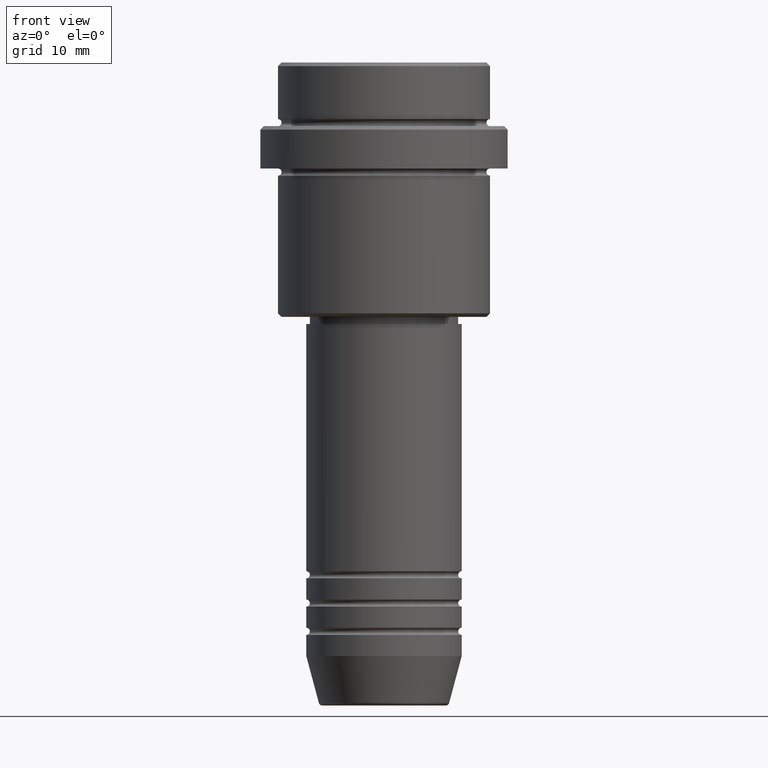
[diagram: clean part render]
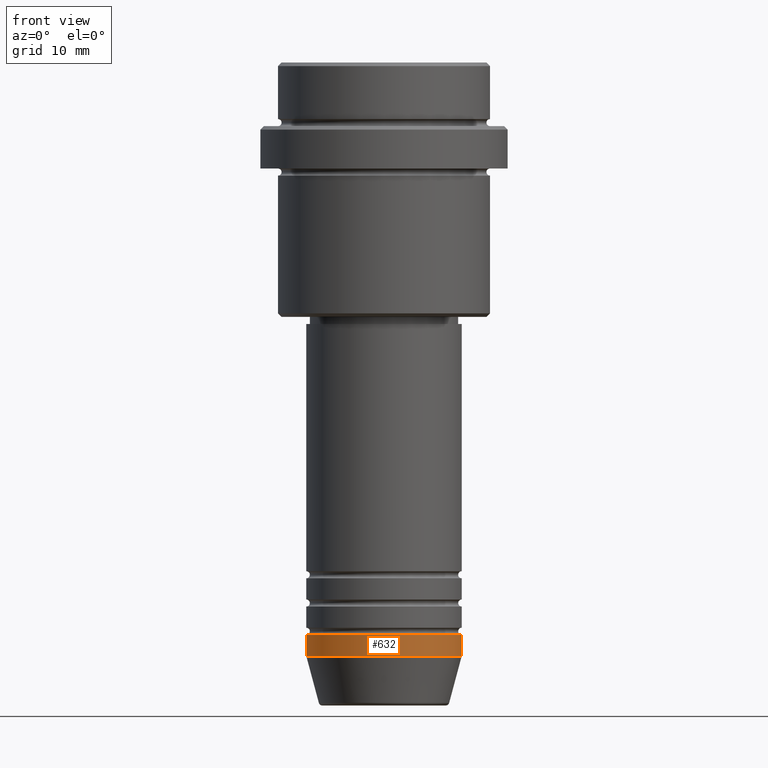
[diagram: same view with one face highlighted and labeled with its STEP entity id]
A machine part, front view. The second image highlights one B-rep face of the part: STEP entity #632.
In plain terms, the highlighted cylindrical surface (partial cylindrical patch) has radius 11 mm, axis along (-0, -0, 1).
Its self-contained STEP definition (entity closure, byte-faithful):
#60 = EDGE_CURVE ( 'NONE', #278, #1341, #364, .T. ) ;
#109 = VECTOR ( 'NONE', #164, 1000.000000000000000 ) ;
#159 = LINE ( 'NONE', #1155, #109 ) ;
#164 = DIRECTION ( 'NONE',  ( -0.000000000000000000, -0.000000000000000000, 1.000000000000000000 ) ) ;
#277 = DIRECTION ( 'NONE',  ( 1.000000000000000000, 0.000000000000000000, 0.000000000000000000 ) ) ;
#278 = VERTEX_POINT ( 'NONE', #846 ) ;
#286 = DIRECTION ( 'NONE',  ( -0.000000000000000000, -0.000000000000000000, 1.000000000000000000 ) ) ;
#287 = EDGE_CURVE ( 'NONE', #1341, #366, #1239, .T. ) ;
#364 = CIRCLE ( 'NONE', #1230, 11.00000000000000000 ) ;
#366 = VERTEX_POINT ( 'NONE', #775 ) ;
#402 = DIRECTION ( 'NONE',  ( -0.000000000000000000, -0.000000000000000000, 1.000000000000000000 ) ) ;
#408 = CARTESIAN_POINT ( 'NONE',  ( 0.000000000000000000, 0.000000000000000000, -80.99999999999998579 ) ) ;
#412 = EDGE_LOOP ( 'NONE', ( #1046, #924, #954, #1217 ) ) ;
#506 = DIRECTION ( 'NONE',  ( -0.000000000000000000, -0.000000000000000000, 1.000000000000000000 ) ) ;
#542 = CARTESIAN_POINT ( 'NONE',  ( -11.00000000000000000, 1.347111479062088405E-15, -80.99999999999998579 ) ) ;
#596 = VECTOR ( 'NONE', #402, 1000.000000000000000 ) ;
#630 = CARTESIAN_POINT ( 'NONE',  ( 11.00000000000000000, 0.000000000000000000, 0.000000000000000000 ) ) ;
#632 = ADVANCED_FACE ( 'NONE', ( #715 ), #845, .T. ) ;
#679 = CARTESIAN_POINT ( 'NONE',  ( 11.00000000000000000, 0.000000000000000000, -83.99999999999998579 ) ) ;
#706 = EDGE_CURVE ( 'NONE', #1245, #366, #1232, .T. ) ;
#715 = FACE_OUTER_BOUND ( 'NONE', #412, .T. ) ;
#774 = CARTESIAN_POINT ( 'NONE',  ( 0.000000000000000000, 0.000000000000000000, -83.99999999999998579 ) ) ;
#775 = CARTESIAN_POINT ( 'NONE',  ( 11.00000000000000000, 0.000000000000000000, -80.99999999999998579 ) ) ;
#845 = CYLINDRICAL_SURFACE ( 'NONE', #1077, 11.00000000000000000 ) ;
#846 = CARTESIAN_POINT ( 'NONE',  ( -11.00000000000000000, 1.347111479062088405E-15, -83.99999999999998579 ) ) ;
#924 = ORIENTED_EDGE ( 'NONE', *, *, #60, .T. ) ;
#954 = ORIENTED_EDGE ( 'NONE', *, *, #287, .T. ) ;
#988 = DIRECTION ( 'NONE',  ( -0.000000000000000000, -0.000000000000000000, 1.000000000000000000 ) ) ;
#1046 = ORIENTED_EDGE ( 'NONE', *, *, #1099, .F. ) ;
#1075 = CARTESIAN_POINT ( 'NONE',  ( 0.000000000000000000, 0.000000000000000000, 0.000000000000000000 ) ) ;
#1077 = AXIS2_PLACEMENT_3D ( 'NONE', #1075, #506, #1174 ) ;
#1099 = EDGE_CURVE ( 'NONE', #278, #1245, #159, .T. ) ;
#1155 = CARTESIAN_POINT ( 'NONE',  ( -11.00000000000000000, 1.347111479062088405E-15, 0.000000000000000000 ) ) ;
#1174 = DIRECTION ( 'NONE',  ( 1.000000000000000000, 0.000000000000000000, 0.000000000000000000 ) ) ;
#1217 = ORIENTED_EDGE ( 'NONE', *, *, #706, .F. ) ;
#1230 = AXIS2_PLACEMENT_3D ( 'NONE', #774, #988, #1277 ) ;
#1232 = CIRCLE ( 'NONE', #1278, 11.00000000000000000 ) ;
#1239 = LINE ( 'NONE', #630, #596 ) ;
#1245 = VERTEX_POINT ( 'NONE', #542 ) ;
#1277 = DIRECTION ( 'NONE',  ( 1.000000000000000000, 0.000000000000000000, 0.000000000000000000 ) ) ;
#1278 = AXIS2_PLACEMENT_3D ( 'NONE', #408, #286, #277 ) ;
#1341 = VERTEX_POINT ( 'NONE', #679 ) ;